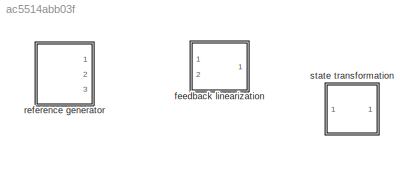
MODEL slx_ac5514abb03f
KIND model
CONFIG AbsTol = auto
CONFIG EnableMultiTasking = off
CONFIG FixedStep = 0.1
CONFIG MaxStep = auto
CONFIG MinStep = auto
CONFIG RelTol = 1e-3
CONFIG SampleTimeConstraint = Unconstrained
CONFIG Solver = ode4
CONFIG SolverName = ode4
CONFIG StartTime = 0.0
CONFIG StopTime = tfin
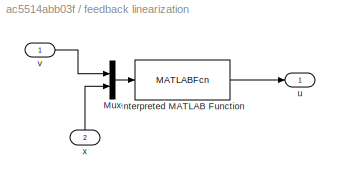
BLOCK [SubSystem] feedback linearization
  Ports = [2, 1]
  RequestExecContextInheritance = off
BLOCK [MATLABFcn] feedback linearization/Interpreted MATLAB Function
  MATLABFcn = u_chua(u)
  Ports = [1, 1]
BLOCK [Mux] feedback linearization/Mux
  DisplayOption = bar
  Inputs = 2
  Ports = [2, 1]
BLOCK [Outport] feedback linearization/u
  IconDisplay = Port number
  VectorParamsAs1DForOutWhenUnconnected = off
BLOCK [Inport] feedback linearization/v
  IconDisplay = Port number
BLOCK [Inport] feedback linearization/x
  IconDisplay = Port number
  Port = 2
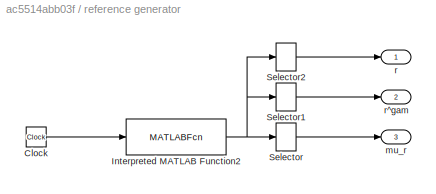
BLOCK [SubSystem] reference generator
  Ports = [0, 3]
  RequestExecContextInheritance = off
BLOCK [Clock] reference generator/Clock
BLOCK [MATLABFcn] reference generator/Interpreted MATLAB Function2
  MATLABFcn = ref_chua(u)
  Ports = [1, 1]
BLOCK [Selector] reference generator/Selector
  IndexOptions = Index vector (dialog)
  Indices = 1:ga
  InputPortWidth = ga+1
  OutputSizes = 1
  Ports = [1, 1]
BLOCK [Selector] reference generator/Selector1
  IndexOptions = Index vector (dialog)
  Indices = ga+1
  InputPortWidth = ga+1
  OutputSizes = 1
  Ports = [1, 1]
BLOCK [Selector] reference generator/Selector2
  IndexOptions = Index vector (dialog)
  Indices = 1
  InputPortWidth = ga+1
  OutputSizes = 1
  Ports = [1, 1]
BLOCK [Outport] reference generator/mu_r
  IconDisplay = Port number
  Port = 3
  VectorParamsAs1DForOutWhenUnconnected = off
BLOCK [Outport] reference generator/r
  IconDisplay = Port number
  VectorParamsAs1DForOutWhenUnconnected = off
BLOCK [Outport] reference generator/r^gam
  IconDisplay = Port number
  Port = 2
  VectorParamsAs1DForOutWhenUnconnected = off
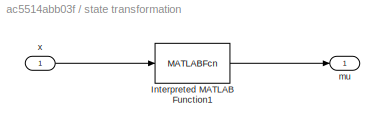
BLOCK [SubSystem] state transformation
  Ports = [1, 1]
  RequestExecContextInheritance = off
BLOCK [MATLABFcn] state transformation/Interpreted MATLAB Function1
  MATLABFcn = mu_chua(u)
  Ports = [1, 1]
BLOCK [Outport] state transformation/mu
  IconDisplay = Port number
  VectorParamsAs1DForOutWhenUnconnected = off
BLOCK [Inport] state transformation/x
  IconDisplay = Port number
LINE feedback linearization/Interpreted MATLAB Function:1 -> feedback linearization/u:1
LINE feedback linearization/Mux:1 -> feedback linearization/Interpreted MATLAB Function:1
LINE feedback linearization/v:1 -> feedback linearization/Mux:1
LINE feedback linearization/x:1 -> feedback linearization/Mux:2
LINE reference generator/Clock:1 -> reference generator/Interpreted MATLAB Function2:1
NET reference generator/Interpreted MATLAB Function2:1 -> reference generator/Selector1:1, reference generator/Selector2:1, reference generator/Selector:1
LINE reference generator/Selector1:1 -> reference generator/r^gam:1
LINE reference generator/Selector2:1 -> reference generator/r:1
LINE reference generator/Selector:1 -> reference generator/mu_r:1
LINE state transformation/Interpreted MATLAB Function1:1 -> state transformation/mu:1
LINE state transformation/x:1 -> state transformation/Interpreted MATLAB Function1:1
note: NET lines group one-source signal fan-out (src -> all destinations, sorted); 1:1 wires keep LINE
